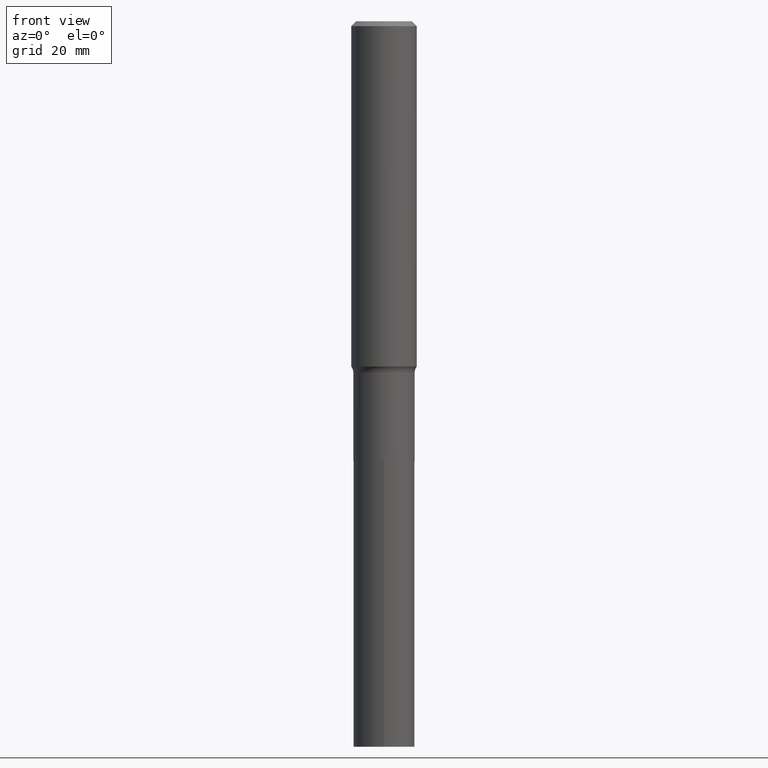
[diagram: clean part render]
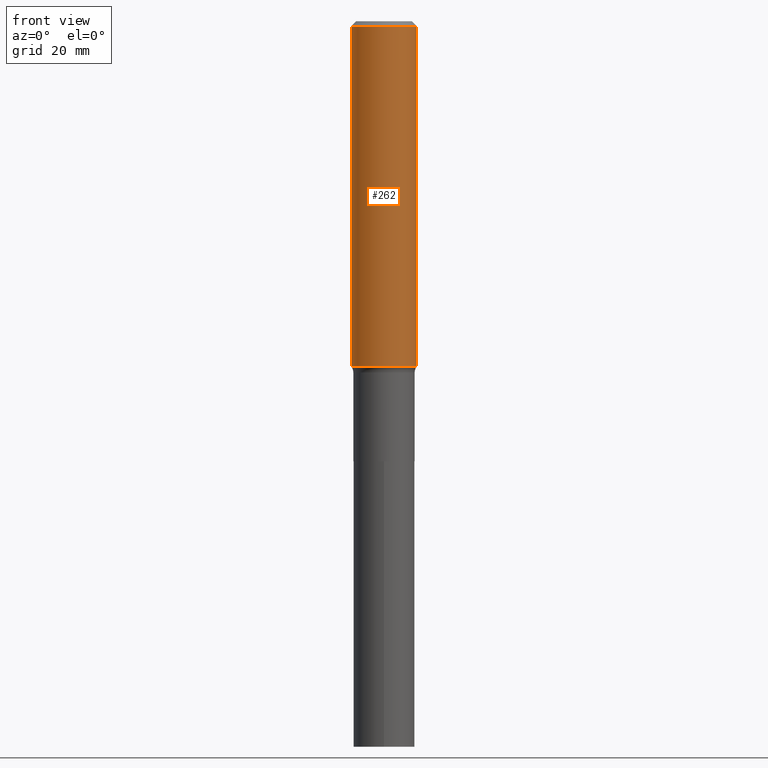
[diagram: same view with one face highlighted and labeled with its STEP entity id]
A machine part, front view. The second image highlights one B-rep face of the part: STEP entity #262.
In plain terms, the highlighted cylindrical surface (edge-blend (fillet) strip) has radius 7.0002 mm, axis along (-0, 0, 1).
Its self-contained STEP definition (entity closure, byte-faithful):
#24 = VECTOR ( 'NONE', #244, 39.37007874015748143 ) ;
#27 = CARTESIAN_POINT ( 'NONE',  ( -0.2756000000000004557, -8.180270599869231898E-15, -2.903789364941395501 ) ) ;
#32 = DIRECTION ( 'NONE',  ( -2.445468806185136597E-29, 3.491481338843145583E-15, 1.000000000000000000 ) ) ;
#59 = VERTEX_POINT ( 'NONE', #151 ) ;
#95 = EDGE_CURVE ( 'NONE', #216, #249, #320, .T. ) ;
#101 = CIRCLE ( 'NONE', #205, 0.2756000000000000116 ) ;
#107 = FACE_OUTER_BOUND ( 'NONE', #185, .T. ) ;
#108 = CARTESIAN_POINT ( 'NONE',  ( 0.2756000000000000116, -2.068842352518111732E-15, -0.04134000000000027930 ) ) ;
#134 = DIRECTION ( 'NONE',  ( -2.445468806185136877E-29, 3.491481338843145188E-15, 1.000000000000000000 ) ) ;
#146 = ORIENTED_EDGE ( 'NONE', *, *, #169, .T. ) ;
#148 = ORIENTED_EDGE ( 'NONE', *, *, #149, .F. ) ;
#149 = EDGE_CURVE ( 'NONE', #216, #59, #240, .T. ) ;
#151 = CARTESIAN_POINT ( 'NONE',  ( -0.2756000000000000116, -3.183176329331085846E-15, -0.04134000000000027930 ) ) ;
#168 = DIRECTION ( 'NONE',  ( 1.000000000000000000, -6.982962677686267499E-15, 0.000000000000000000 ) ) ;
#169 = EDGE_CURVE ( 'NONE', #249, #344, #202, .T. ) ;
#185 = EDGE_LOOP ( 'NONE', ( #148, #374, #146, #346 ) ) ;
#193 = DIRECTION ( 'NONE',  ( -2.445468806185136597E-29, 3.491481338843145583E-15, 1.000000000000000000 ) ) ;
#201 = CARTESIAN_POINT ( 'NONE',  ( -0.2756000000000001782, 1.958255779754837378E-15, -1.355658510874252848E-29 ) ) ;
#202 = LINE ( 'NONE', #392, #425 ) ;
#205 = AXIS2_PLACEMENT_3D ( 'NONE', #428, #32, #168 ) ;
#216 = VERTEX_POINT ( 'NONE', #27 ) ;
#220 = EDGE_CURVE ( 'NONE', #59, #344, #101, .T. ) ;
#227 = CARTESIAN_POINT ( 'NONE',  ( 7.101126311696330922E-29, -1.013852637962407164E-14, -2.903789364941395501 ) ) ;
#240 = LINE ( 'NONE', #201, #24 ) ;
#244 = DIRECTION ( 'NONE',  ( -2.445468806185136877E-29, 3.491481338843145188E-15, 1.000000000000000000 ) ) ;
#249 = VERTEX_POINT ( 'NONE', #432 ) ;
#262 = ADVANCED_FACE ( 'NONE', ( #107 ), #397, .T. ) ;
#283 = DIRECTION ( 'NONE',  ( 1.000000000000000000, -6.982962677686267499E-15, 4.876176775795935793E-29 ) ) ;
#320 = CIRCLE ( 'NONE', #339, 0.2756000000000004002 ) ;
#339 = AXIS2_PLACEMENT_3D ( 'NONE', #227, #193, #342 ) ;
#342 = DIRECTION ( 'NONE',  ( 1.000000000000000000, -6.982962677686270655E-15, 0.000000000000000000 ) ) ;
#344 = VERTEX_POINT ( 'NONE', #108 ) ;
#346 = ORIENTED_EDGE ( 'NONE', *, *, #220, .F. ) ;
#374 = ORIENTED_EDGE ( 'NONE', *, *, #95, .T. ) ;
#392 = CARTESIAN_POINT ( 'NONE',  ( 0.2756000000000001782, -1.924504513970336532E-15, 1.343874319409360828E-29 ) ) ;
#397 = CYLINDRICAL_SURFACE ( 'NONE', #450, 0.2756000000000001782 ) ;
#398 = DIRECTION ( 'NONE',  ( -2.445468806185136597E-29, 3.491481338843145583E-15, 1.000000000000000000 ) ) ;
#425 = VECTOR ( 'NONE', #134, 39.37007874015748143 ) ;
#428 = CARTESIAN_POINT ( 'NONE',  ( 1.010956804476942398E-30, -1.443378385477766056E-16, -0.04134000000000027930 ) ) ;
#432 = CARTESIAN_POINT ( 'NONE',  ( 0.2756000000000004557, -1.206303089359441133E-14, -2.903789364941395501 ) ) ;
#433 = CARTESIAN_POINT ( 'NONE',  ( 0.000000000000000000, 0.000000000000000000, 0.000000000000000000 ) ) ;
#450 = AXIS2_PLACEMENT_3D ( 'NONE', #433, #398, #283 ) ;